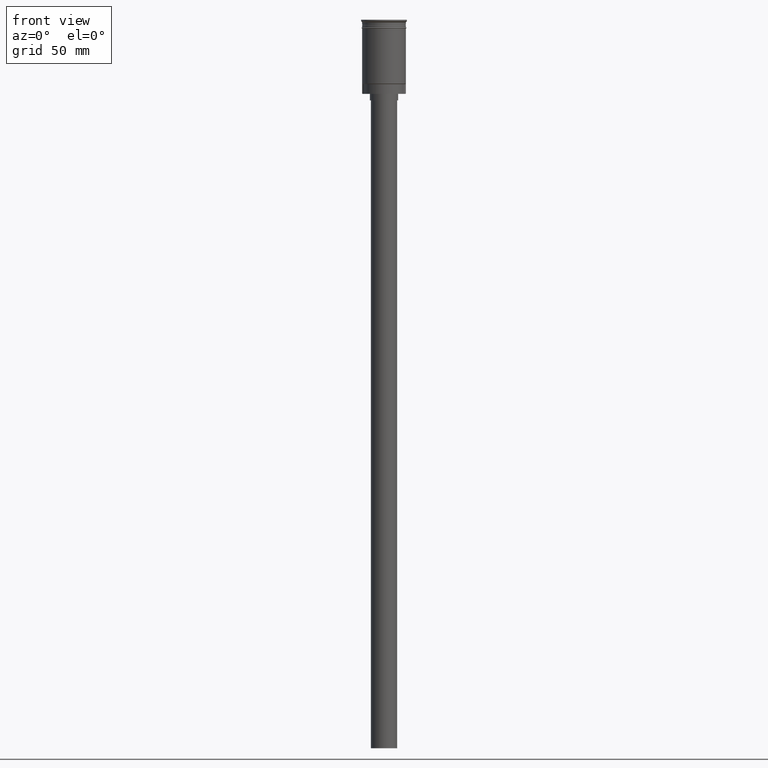
[diagram: clean part render]
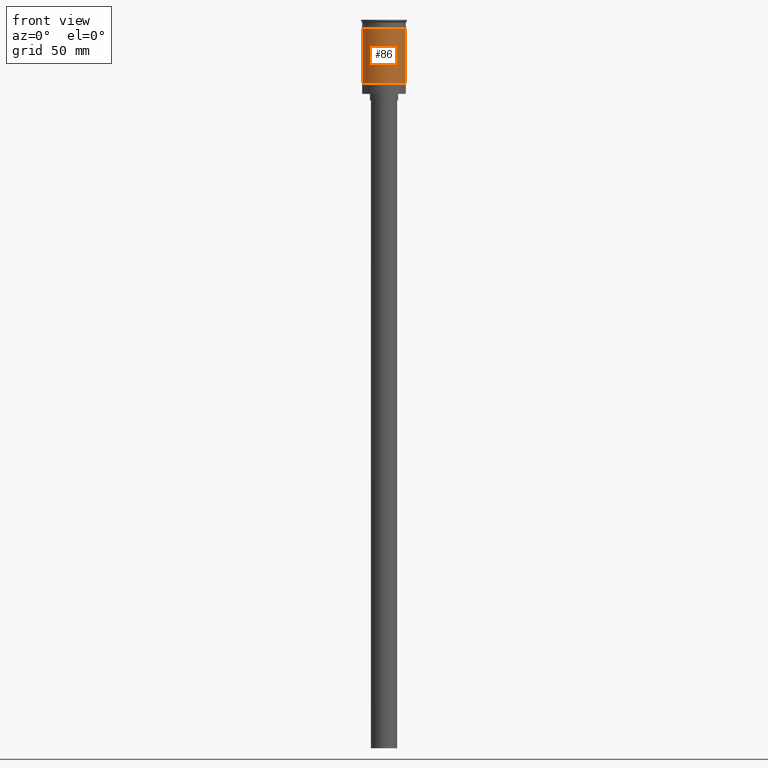
[diagram: same view with one face highlighted and labeled with its STEP entity id]
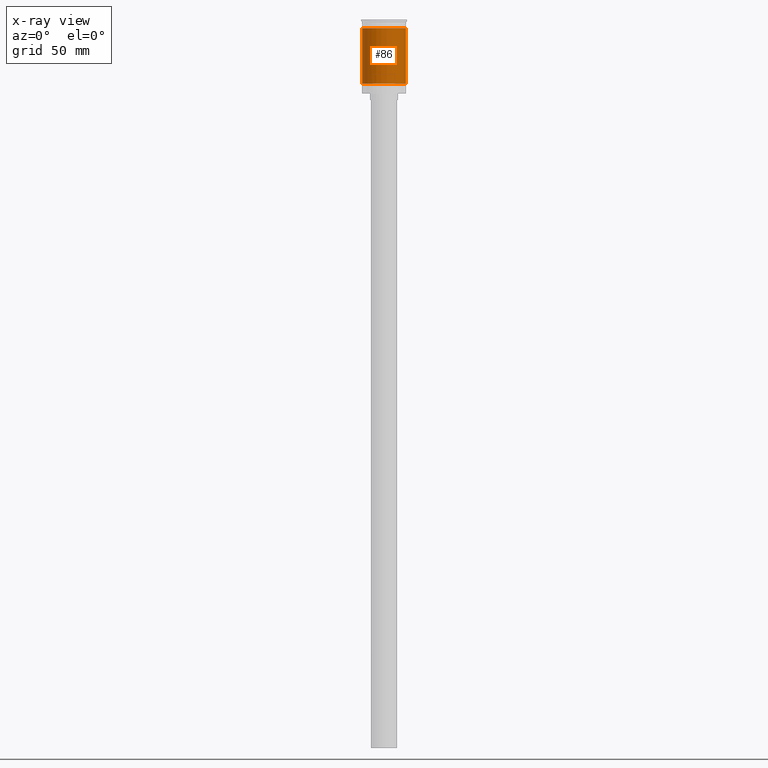
[diagram: x-ray of the same camera — body ghosted, the highlighted face saturated]
A machine part, front view. The second image highlights one B-rep face of the part: STEP entity #86.
The next image is the same camera in x-ray: the body ghosted, the highlighted face saturated — about 0% of this face is hidden behind the body in this view.
In plain terms, the highlighted cylindrical surface (edge-blend (fillet) strip) has radius 10 mm, axis along (-0, -0, 1).
Its self-contained STEP definition (entity closure, byte-faithful):
#11 = EDGE_CURVE ( 'NONE', #73, #1462, #638, .T. ) ;
#73 = VERTEX_POINT ( 'NONE', #541 ) ;
#86 = ADVANCED_FACE ( 'NONE', ( #1174 ), #1048, .T. ) ;
#135 = DIRECTION ( 'NONE',  ( -0.000000000000000000, -0.000000000000000000, 1.000000000000000000 ) ) ;
#184 = AXIS2_PLACEMENT_3D ( 'NONE', #1419, #1537, #430 ) ;
#294 = EDGE_CURVE ( 'NONE', #1462, #1323, #567, .T. ) ;
#305 = DIRECTION ( 'NONE',  ( -0.000000000000000000, -0.000000000000000000, 1.000000000000000000 ) ) ;
#311 = AXIS2_PLACEMENT_3D ( 'NONE', #1147, #135, #620 ) ;
#386 = VECTOR ( 'NONE', #667, 1000.000000000000000 ) ;
#421 = LINE ( 'NONE', #1189, #386 ) ;
#430 = DIRECTION ( 'NONE',  ( 1.000000000000000000, 0.000000000000000000, 0.000000000000000000 ) ) ;
#457 = CARTESIAN_POINT ( 'NONE',  ( -10.00000000000000000, 1.224646799147353256E-15, -3.999999999999996447 ) ) ;
#460 = CIRCLE ( 'NONE', #528, 9.999999999999998224 ) ;
#528 = AXIS2_PLACEMENT_3D ( 'NONE', #777, #305, #786 ) ;
#541 = CARTESIAN_POINT ( 'NONE',  ( -9.999999999999991118, 0.000000000000000000, -29.30000000000002913 ) ) ;
#567 = LINE ( 'NONE', #598, #1545 ) ;
#590 = DIRECTION ( 'NONE',  ( -0.000000000000000000, -0.000000000000000000, 1.000000000000000000 ) ) ;
#598 = CARTESIAN_POINT ( 'NONE',  ( 9.999999999999994671, 0.000000000000000000, 0.000000000000000000 ) ) ;
#620 = DIRECTION ( 'NONE',  ( -1.000000000000000000, 0.000000000000000000, 0.000000000000000000 ) ) ;
#638 = CIRCLE ( 'NONE', #311, 9.999999999999994671 ) ;
#667 = DIRECTION ( 'NONE',  ( -0.000000000000000000, -0.000000000000000000, 1.000000000000000000 ) ) ;
#668 = EDGE_CURVE ( 'NONE', #719, #1323, #460, .T. ) ;
#719 = VERTEX_POINT ( 'NONE', #457 ) ;
#777 = CARTESIAN_POINT ( 'NONE',  ( 0.000000000000000000, 0.000000000000000000, -3.999999999999996447 ) ) ;
#786 = DIRECTION ( 'NONE',  ( 1.000000000000000000, 0.000000000000000000, 0.000000000000000000 ) ) ;
#1016 = EDGE_CURVE ( 'NONE', #73, #719, #421, .T. ) ;
#1048 = CYLINDRICAL_SURFACE ( 'NONE', #184, 9.999999999999994671 ) ;
#1053 = CARTESIAN_POINT ( 'NONE',  ( 9.999999999999994671, 1.224646799147352665E-15, -29.30000000000002913 ) ) ;
#1082 = ORIENTED_EDGE ( 'NONE', *, *, #1016, .F. ) ;
#1132 = ORIENTED_EDGE ( 'NONE', *, *, #294, .T. ) ;
#1147 = CARTESIAN_POINT ( 'NONE',  ( 0.000000000000000000, 0.000000000000000000, -29.30000000000002913 ) ) ;
#1174 = FACE_OUTER_BOUND ( 'NONE', #1298, .T. ) ;
#1189 = CARTESIAN_POINT ( 'NONE',  ( -9.999999999999994671, 1.224646799147352665E-15, 0.000000000000000000 ) ) ;
#1298 = EDGE_LOOP ( 'NONE', ( #1082, #1546, #1132, #1397 ) ) ;
#1323 = VERTEX_POINT ( 'NONE', #1376 ) ;
#1376 = CARTESIAN_POINT ( 'NONE',  ( 9.999999999999998224, 0.000000000000000000, -3.999999999999996447 ) ) ;
#1397 = ORIENTED_EDGE ( 'NONE', *, *, #668, .F. ) ;
#1419 = CARTESIAN_POINT ( 'NONE',  ( 0.000000000000000000, 0.000000000000000000, 0.000000000000000000 ) ) ;
#1462 = VERTEX_POINT ( 'NONE', #1053 ) ;
#1537 = DIRECTION ( 'NONE',  ( -0.000000000000000000, -0.000000000000000000, 1.000000000000000000 ) ) ;
#1545 = VECTOR ( 'NONE', #590, 1000.000000000000000 ) ;
#1546 = ORIENTED_EDGE ( 'NONE', *, *, #11, .T. ) ;